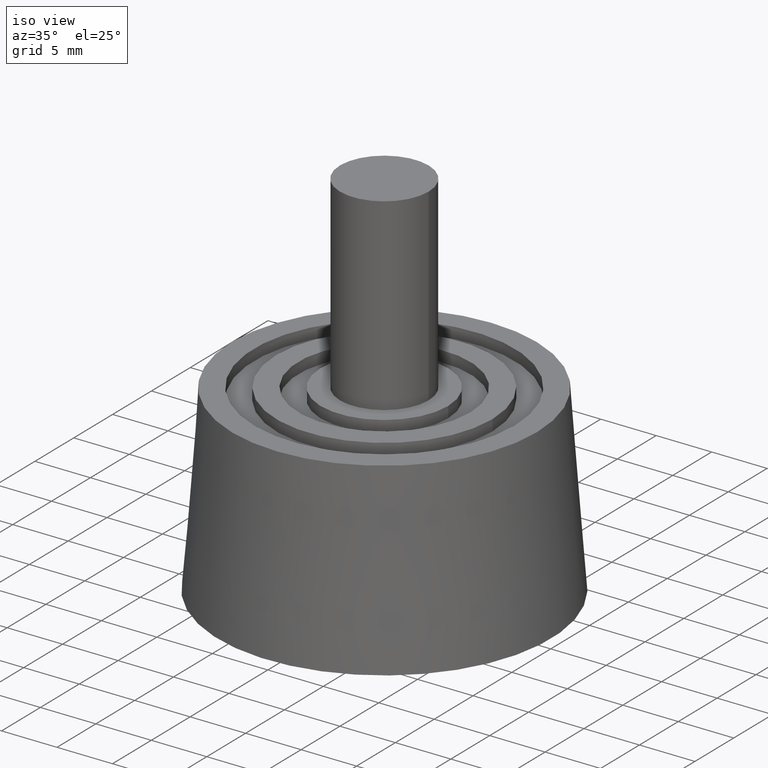
[diagram: clean part render]
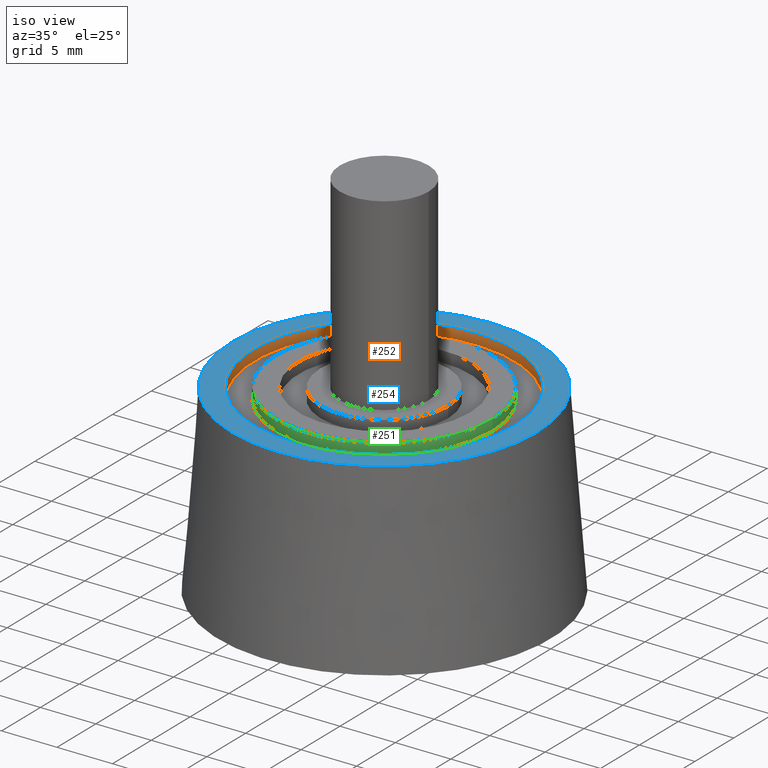
[diagram: same view with three faces highlighted in distinct colors, each labeled with its STEP entity id]
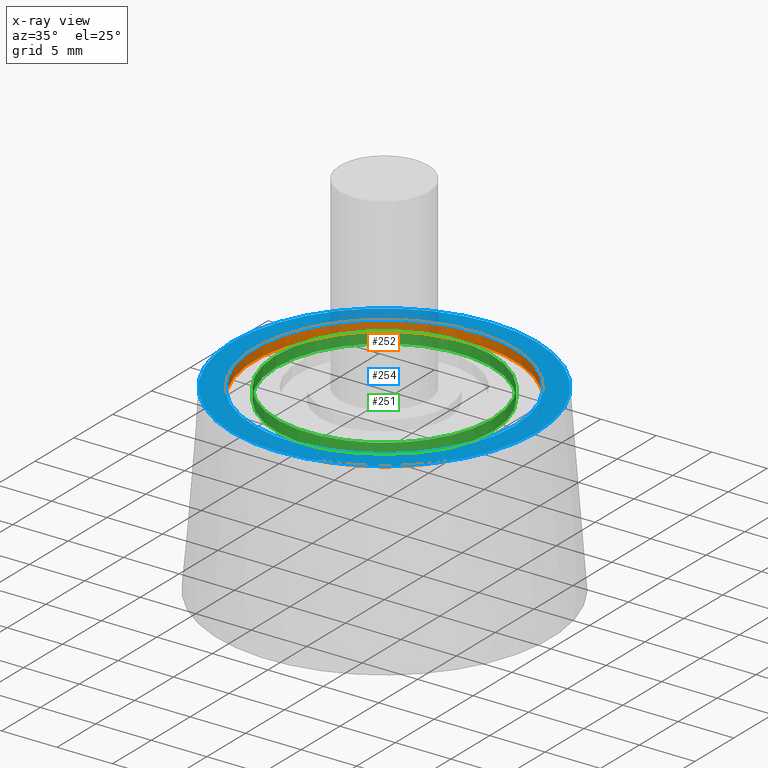
[diagram: x-ray of the same camera — body ghosted, the three highlighted faces saturated]
A machine part, iso view with three faces highlighted in distinct colors.
The next image is the same camera in x-ray (body ghosted, the three faces saturated) — at least one of them is partly hidden behind the body in this view.
Their STEP definitions:

[orange] entity #252 — the highlighted cylindrical surface (bore or boss wall) has radius 11.75 mm, axis along (0, 0, -1).
#42=FACE_BOUND('',#103,.T.);
#65=FACE_OUTER_BOUND('',#102,.T.);
#102=EDGE_LOOP('',(#212));
#103=EDGE_LOOP('',(#213));
#135=CIRCLE('',#297,11.75);
#136=CIRCLE('',#298,11.75);
#157=VERTEX_POINT('',#454);
#158=VERTEX_POINT('',#456);
#179=EDGE_CURVE('',#157,#157,#135,.T.);
#180=EDGE_CURVE('',#158,#158,#136,.T.);
#212=ORIENTED_EDGE('',*,*,#179,.T.);
#213=ORIENTED_EDGE('',*,*,#180,.F.);
#235=CYLINDRICAL_SURFACE('',#296,11.75);
#252=ADVANCED_FACE('',(#65,#42),#235,.F.);
#296=AXIS2_PLACEMENT_3D('',#453,#378,#379);
#297=AXIS2_PLACEMENT_3D('',#455,#380,#381);
#298=AXIS2_PLACEMENT_3D('',#457,#382,#383);
#378=DIRECTION('center_axis',(0.,0.,-1.));
#379=DIRECTION('ref_axis',(-1.,0.,0.));
#380=DIRECTION('center_axis',(0.,0.,-1.));
#381=DIRECTION('ref_axis',(-1.,0.,0.));
#382=DIRECTION('center_axis',(0.,0.,-1.));
#383=DIRECTION('ref_axis',(-1.,0.,0.));
#453=CARTESIAN_POINT('Origin',(0.,0.,16.5));
#454=CARTESIAN_POINT('',(11.75,1.43895998899814E-15,15.5));
#455=CARTESIAN_POINT('Origin',(0.,0.,15.5));
#456=CARTESIAN_POINT('',(11.75,1.43895998899814E-15,16.5));
#457=CARTESIAN_POINT('Origin',(0.,0.,16.5));

[blue] entity #254 — the highlighted planar face has unit normal (0, 0, -1).
#24=PLANE('',#300);
#44=FACE_BOUND('',#107,.T.);
#67=FACE_OUTER_BOUND('',#106,.T.);
#106=EDGE_LOOP('',(#216));
#107=EDGE_LOOP('',(#217));
#136=CIRCLE('',#298,11.75);
#137=CIRCLE('',#301,13.75);
#158=VERTEX_POINT('',#456);
#159=VERTEX_POINT('',#460);
#180=EDGE_CURVE('',#158,#158,#136,.T.);
#181=EDGE_CURVE('',#159,#159,#137,.T.);
#216=ORIENTED_EDGE('',*,*,#181,.F.);
#217=ORIENTED_EDGE('',*,*,#180,.T.);
#254=ADVANCED_FACE('',(#67,#44),#24,.F.);
#298=AXIS2_PLACEMENT_3D('',#457,#382,#383);
#300=AXIS2_PLACEMENT_3D('',#459,#386,#387);
#301=AXIS2_PLACEMENT_3D('',#461,#388,#389);
#382=DIRECTION('center_axis',(0.,0.,-1.));
#383=DIRECTION('ref_axis',(-1.,0.,0.));
#386=DIRECTION('center_axis',(0.,0.,-1.));
#387=DIRECTION('ref_axis',(-1.,0.,0.));
#388=DIRECTION('center_axis',(0.,0.,-1.));
#389=DIRECTION('ref_axis',(-1.,0.,0.));
#456=CARTESIAN_POINT('',(11.75,1.43895998899814E-15,16.5));
#457=CARTESIAN_POINT('Origin',(0.,0.,16.5));
#459=CARTESIAN_POINT('Origin',(0.,0.,16.5));
#460=CARTESIAN_POINT('',(-13.75,0.,16.5));
#461=CARTESIAN_POINT('Origin',(0.,0.,16.5));

[green] entity #251 — the highlighted cylindrical surface (bore or boss wall) has radius 9.75 mm, axis along (0, 0, -1).
#41=FACE_BOUND('',#101,.T.);
#64=FACE_OUTER_BOUND('',#100,.T.);
#100=EDGE_LOOP('',(#210));
#101=EDGE_LOOP('',(#211));
#133=CIRCLE('',#294,9.75);
#134=CIRCLE('',#295,9.75);
#155=VERTEX_POINT('',#449);
#156=VERTEX_POINT('',#451);
#177=EDGE_CURVE('',#155,#155,#133,.T.);
#178=EDGE_CURVE('',#156,#156,#134,.T.);
#210=ORIENTED_EDGE('',*,*,#177,.T.);
#211=ORIENTED_EDGE('',*,*,#178,.F.);
#234=CYLINDRICAL_SURFACE('',#293,9.75);
#251=ADVANCED_FACE('',(#64,#41),#234,.T.);
#293=AXIS2_PLACEMENT_3D('',#448,#372,#373);
#294=AXIS2_PLACEMENT_3D('',#450,#374,#375);
#295=AXIS2_PLACEMENT_3D('',#452,#376,#377);
#372=DIRECTION('center_axis',(0.,0.,-1.));
#373=DIRECTION('ref_axis',(-1.,0.,0.));
#374=DIRECTION('center_axis',(0.,0.,1.));
#375=DIRECTION('ref_axis',(-1.,0.,0.));
#376=DIRECTION('center_axis',(0.,0.,1.));
#377=DIRECTION('ref_axis',(-1.,0.,0.));
#448=CARTESIAN_POINT('Origin',(0.,0.,16.5));
#449=CARTESIAN_POINT('',(9.75,1.19403062916867E-15,15.5));
#450=CARTESIAN_POINT('Origin',(0.,0.,15.5));
#451=CARTESIAN_POINT('',(9.75,1.19403062916867E-15,16.5));
#452=CARTESIAN_POINT('Origin',(0.,0.,16.5));